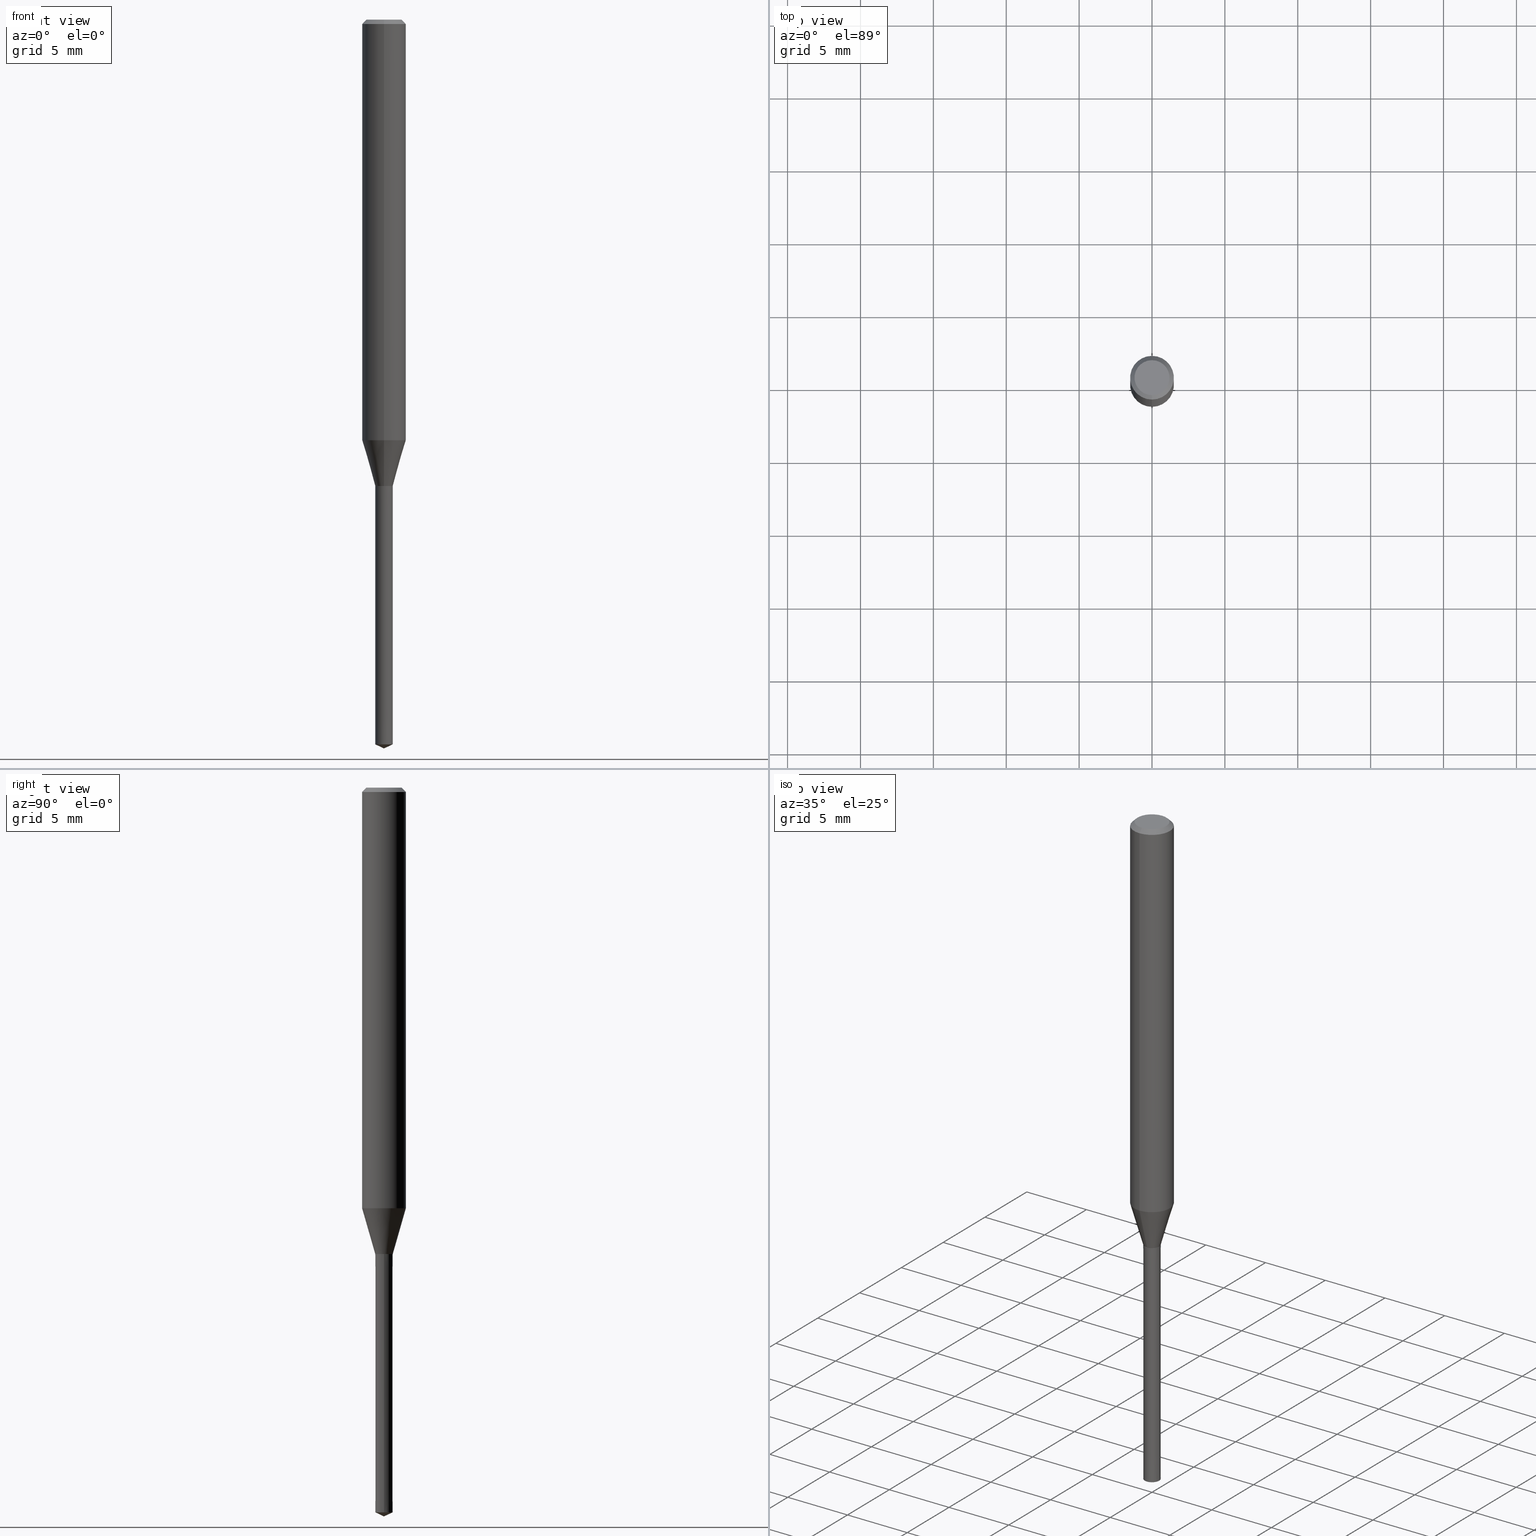
[diagram: canonical four-view strip — front | top / right | iso, engineering-drawing reading convention]
A machine part, canonical four-view strip (front | top / right | iso — engineering-drawing reading convention). The complete STEP part file that produces these views, byte-faithful:
ISO-10303-21;
HEADER;
FILE_DESCRIPTION(('no description'),'unknown implementation level');
FILE_NAME('UTDLX2120-180-Huellk.stp','  ',('CIMSOURCE GmbH'),('CADClick - KiM GmbH - www.kimweb.de'),'unknown preprocess','ACIS','unknown authorization');
FILE_SCHEMA(('automotive_design'));
ENDSEC;
DATA;
#1=MECHANICAL_DESIGN_GEOMETRIC_PRESENTATION_REPRESENTATION(' ',(#14,#15,#16,#17,#18,#19,#20,#21,#22,#23,#24,#25,#26,#27,#28,#29,#30,#31,#32,#33,#34,#35,#36,#37,#38,#39,#40,#41,#42,#43,#44,#45,#46,#47,#48,#49,#50,#51,#52,#53,#54,#55,#56,#57,#58,#59,#60,#61,#62,#63,#64,#65,#66,#67,#68,#69,#70,#71),#10);
#2=PRODUCT_DEFINITION_CONTEXT('',#72,'design');
#3=APPLICATION_PROTOCOL_DEFINITION('INTERNATIONAL STANDARD','automotive_design',1994,#72);
#4=PRODUCT_CATEGORY_RELATIONSHIP('NONE','NONE',#73,#74);
#5=SHAPE_DEFINITION_REPRESENTATION(#75,#76);
#6=PRODUCT_DEFINITION_CONTEXT('',#77,'design');
#7=APPLICATION_PROTOCOL_DEFINITION('INTERNATIONAL STANDARD','automotive_design',1994,#77);
#8=PRODUCT_CATEGORY_RELATIONSHIP('NONE','NONE',#78,#79);
#9=SHAPE_DEFINITION_REPRESENTATION(#80,#81);
#10= (GEOMETRIC_REPRESENTATION_CONTEXT(3)GLOBAL_UNCERTAINTY_ASSIGNED_CONTEXT((#84))GLOBAL_UNIT_ASSIGNED_CONTEXT((#86,#87,#88))REPRESENTATION_CONTEXT('NONE','WORKSPACE'));
#14=STYLED_ITEM('',(#90),#91);
#15=STYLED_ITEM('',(#92),#93);
#16=STYLED_ITEM('',(#94),#95);
#17=STYLED_ITEM('',(#96),#97);
#18=STYLED_ITEM('',(#98),#99);
#19=STYLED_ITEM('',(#100),#101);
#20=STYLED_ITEM('',(#102),#103);
#21=STYLED_ITEM('',(#104),#105);
#22=STYLED_ITEM('',(#106),#107);
#23=STYLED_ITEM('',(#108),#109);
#24=STYLED_ITEM('',(#110),#111);
#25=STYLED_ITEM('',(#112),#113);
#26=STYLED_ITEM('',(#114),#115);
#27=STYLED_ITEM('',(#116),#117);
#28=STYLED_ITEM('',(#118),#119);
#29=STYLED_ITEM('',(#120),#121);
#30=STYLED_ITEM('',(#122),#123);
#31=STYLED_ITEM('',(#124),#125);
#32=STYLED_ITEM('',(#126),#127);
#33=STYLED_ITEM('',(#128),#129);
#34=STYLED_ITEM('',(#130),#131);
#35=STYLED_ITEM('',(#132),#133);
#36=STYLED_ITEM('',(#134),#135);
#37=STYLED_ITEM('',(#136),#137);
#38=STYLED_ITEM('',(#138),#139);
#39=STYLED_ITEM('',(#140),#141);
#40=STYLED_ITEM('',(#142),#143);
#41=STYLED_ITEM('',(#144),#145);
#42=STYLED_ITEM('',(#146),#147);
#43=STYLED_ITEM('',(#148),#149);
#44=STYLED_ITEM('',(#150),#151);
#45=STYLED_ITEM('',(#152),#153);
#46=STYLED_ITEM('',(#154),#155);
#47=STYLED_ITEM('',(#156),#157);
#48=STYLED_ITEM('',(#158),#159);
#49=STYLED_ITEM('',(#160),#161);
#50=STYLED_ITEM('',(#162),#163);
#51=STYLED_ITEM('',(#164),#165);
#52=STYLED_ITEM('',(#166),#167);
#53=STYLED_ITEM('',(#168),#169);
#54=STYLED_ITEM('',(#170),#171);
#55=STYLED_ITEM('',(#172),#173);
#56=STYLED_ITEM('',(#174),#175);
#57=STYLED_ITEM('',(#176),#177);
#58=STYLED_ITEM('',(#178),#179);
#59=STYLED_ITEM('',(#180),#181);
#60=STYLED_ITEM('',(#182),#183);
#61=STYLED_ITEM('',(#184),#185);
#62=STYLED_ITEM('',(#186),#187);
#63=STYLED_ITEM('',(#188),#189);
#64=STYLED_ITEM('',(#190),#191);
#65=STYLED_ITEM('',(#192),#193);
#66=STYLED_ITEM('',(#194),#195);
#67=STYLED_ITEM('',(#196),#197);
#68=STYLED_ITEM('',(#198),#199);
#69=STYLED_ITEM('',(#200),#201);
#70=STYLED_ITEM('',(#202),#203);
#71=STYLED_ITEM('',(#204),#205);
#72=APPLICATION_CONTEXT(' ');
#73=PRODUCT_CATEGORY('part','NONE');
#74=PRODUCT_RELATED_PRODUCT_CATEGORY('detail',' ',(#206));
#75=PRODUCT_DEFINITION_SHAPE('NONE','NONE',#207);
#76=ADVANCED_BREP_SHAPE_REPRESENTATION('1',(#177,#208),#10);
#77=APPLICATION_CONTEXT(' ');
#78=PRODUCT_CATEGORY('part','NONE');
#79=PRODUCT_RELATED_PRODUCT_CATEGORY('detail',' ',(#209));
#80=PRODUCT_DEFINITION_SHAPE('NONE','NONE',#210);
#81=ADVANCED_BREP_SHAPE_REPRESENTATION('2',(#147,#211),#10);
#84=UNCERTAINTY_MEASURE_WITH_UNIT(LENGTH_MEASURE(1.0E-006),#86,'','');
#86= (CONVERSION_BASED_UNIT('MILLIMETRE',#214)LENGTH_UNIT()NAMED_UNIT(#217));
#87= (NAMED_UNIT(#219)PLANE_ANGLE_UNIT()SI_UNIT($,.RADIAN.));
#88= (NAMED_UNIT(#219)SOLID_ANGLE_UNIT()SI_UNIT($,.STERADIAN.));
#90=PRESENTATION_STYLE_ASSIGNMENT((#225));
#91=EDGE_CURVE('',#169,#203,#226,.T.);
#92=PRESENTATION_STYLE_ASSIGNMENT((#227));
#93=VERTEX_POINT('',#228);
#94=PRESENTATION_STYLE_ASSIGNMENT((#229));
#95=ADVANCED_FACE('',(#230),#231,.T.);
#96=PRESENTATION_STYLE_ASSIGNMENT((#232));
#97=VERTEX_POINT('',#233);
#98=PRESENTATION_STYLE_ASSIGNMENT((#234));
#99=VERTEX_POINT('',#235);
#100=PRESENTATION_STYLE_ASSIGNMENT((#236));
#101=VERTEX_POINT('',#237);
#102=PRESENTATION_STYLE_ASSIGNMENT((#238));
#103=ADVANCED_FACE('',(#239),#240,.T.);
#104=PRESENTATION_STYLE_ASSIGNMENT((#241));
#105=ADVANCED_FACE('',(#242),#243,.T.);
#106=PRESENTATION_STYLE_ASSIGNMENT((#244));
#107=EDGE_CURVE('',#135,#127,#245,.T.);
#108=PRESENTATION_STYLE_ASSIGNMENT((#246));
#109=ADVANCED_FACE('',(#247),#248,.T.);
#110=PRESENTATION_STYLE_ASSIGNMENT((#249));
#111=EDGE_CURVE('',#93,#127,#250,.T.);
#112=PRESENTATION_STYLE_ASSIGNMENT((#251));
#113=EDGE_CURVE('',#101,#201,#252,.T.);
#114=PRESENTATION_STYLE_ASSIGNMENT((#253));
#115=EDGE_CURVE('',#153,#157,#254,.T.);
#116=PRESENTATION_STYLE_ASSIGNMENT((#255));
#117=ADVANCED_FACE('',(#256),#257,.T.);
#118=PRESENTATION_STYLE_ASSIGNMENT((#258));
#119=VERTEX_POINT('',#259);
#120=PRESENTATION_STYLE_ASSIGNMENT((#260));
#121=EDGE_CURVE('',#169,#163,#261,.T.);
#122=PRESENTATION_STYLE_ASSIGNMENT((#262));
#123=EDGE_CURVE('',#201,#99,#263,.T.);
#124=PRESENTATION_STYLE_ASSIGNMENT((#264));
#125=ADVANCED_FACE('',(#265),#266,.T.);
#126=PRESENTATION_STYLE_ASSIGNMENT((#267));
#127=VERTEX_POINT('',#268);
#128=PRESENTATION_STYLE_ASSIGNMENT((#269));
#129=EDGE_CURVE('',#119,#163,#270,.T.);
#130=PRESENTATION_STYLE_ASSIGNMENT((#271));
#131=EDGE_CURVE('',#97,#153,#272,.T.);
#132=PRESENTATION_STYLE_ASSIGNMENT((#273));
#133=ADVANCED_FACE('',(#274),#275,.T.);
#134=PRESENTATION_STYLE_ASSIGNMENT((#276));
#135=VERTEX_POINT('',#277);
#136=PRESENTATION_STYLE_ASSIGNMENT((#278));
#137=VERTEX_POINT('',#279);
#138=PRESENTATION_STYLE_ASSIGNMENT((#280));
#139=EDGE_CURVE('',#119,#203,#281,.T.);
#140=PRESENTATION_STYLE_ASSIGNMENT((#282));
#141=EDGE_CURVE('',#203,#185,#283,.T.);
#142=PRESENTATION_STYLE_ASSIGNMENT((#284));
#143=EDGE_CURVE('',#99,#135,#285,.T.);
#144=PRESENTATION_STYLE_ASSIGNMENT((#286));
#145=EDGE_CURVE('',#93,#137,#287,.T.);
#146=PRESENTATION_STYLE_ASSIGNMENT((#288));
#147=MANIFOLD_SOLID_BREP('2',#289);
#148=PRESENTATION_STYLE_ASSIGNMENT((#290));
#149=ADVANCED_FACE('',(#291),#292,.T.);
#150=PRESENTATION_STYLE_ASSIGNMENT((#293));
#151=ADVANCED_FACE('',(#294),#295,.T.);
#152=PRESENTATION_STYLE_ASSIGNMENT((#296));
#153=VERTEX_POINT('',#297);
#154=PRESENTATION_STYLE_ASSIGNMENT((#298));
#155=EDGE_CURVE('',#163,#119,#299,.T.);
#156=PRESENTATION_STYLE_ASSIGNMENT((#300));
#157=VERTEX_POINT('',#301);
#158=PRESENTATION_STYLE_ASSIGNMENT((#302));
#159=ADVANCED_FACE('',(#303),#304,.T.);
#160=PRESENTATION_STYLE_ASSIGNMENT((#305));
#161=EDGE_CURVE('',#203,#169,#306,.T.);
#162=PRESENTATION_STYLE_ASSIGNMENT((#307));
#163=VERTEX_POINT('',#308);
#164=PRESENTATION_STYLE_ASSIGNMENT((#309));
#165=EDGE_CURVE('',#137,#93,#310,.T.);
#166=PRESENTATION_STYLE_ASSIGNMENT((#311));
#167=ADVANCED_FACE('',(#312),#313,.T.);
#168=PRESENTATION_STYLE_ASSIGNMENT((#314));
#169=VERTEX_POINT('',#315);
#170=PRESENTATION_STYLE_ASSIGNMENT((#316));
#171=EDGE_CURVE('',#153,#201,#317,.T.);
#172=PRESENTATION_STYLE_ASSIGNMENT((#318));
#173=EDGE_CURVE('',#101,#157,#319,.T.);
#174=PRESENTATION_STYLE_ASSIGNMENT((#320));
#175=ADVANCED_FACE('',(#321),#322,.T.);
#176=PRESENTATION_STYLE_ASSIGNMENT((#323));
#177=MANIFOLD_SOLID_BREP('1',#324);
#178=PRESENTATION_STYLE_ASSIGNMENT((#325));
#179=EDGE_CURVE('',#127,#97,#326,.T.);
#180=PRESENTATION_STYLE_ASSIGNMENT((#327));
#181=EDGE_CURVE('',#185,#169,#328,.T.);
#182=PRESENTATION_STYLE_ASSIGNMENT((#329));
#183=EDGE_CURVE('',#135,#137,#330,.T.);
#184=PRESENTATION_STYLE_ASSIGNMENT((#331));
#185=VERTEX_POINT('',#332);
#186=PRESENTATION_STYLE_ASSIGNMENT((#333));
#187=EDGE_CURVE('',#97,#99,#334,.T.);
#188=PRESENTATION_STYLE_ASSIGNMENT((#335));
#189=EDGE_CURVE('',#127,#135,#336,.T.);
#190=PRESENTATION_STYLE_ASSIGNMENT((#337));
#191=EDGE_CURVE('',#157,#101,#338,.T.);
#192=PRESENTATION_STYLE_ASSIGNMENT((#339));
#193=EDGE_CURVE('',#201,#153,#340,.T.);
#194=PRESENTATION_STYLE_ASSIGNMENT((#341));
#195=ADVANCED_FACE('',(#342),#343,.T.);
#196=PRESENTATION_STYLE_ASSIGNMENT((#344));
#197=ADVANCED_FACE('',(#345),#346,.T.);
#198=PRESENTATION_STYLE_ASSIGNMENT((#347));
#199=EDGE_CURVE('',#99,#97,#348,.T.);
#200=PRESENTATION_STYLE_ASSIGNMENT((#349));
#201=VERTEX_POINT('',#350);
#202=PRESENTATION_STYLE_ASSIGNMENT((#351));
#203=VERTEX_POINT('',#352);
#204=PRESENTATION_STYLE_ASSIGNMENT((#353));
#205=ADVANCED_FACE('',(#354),#355,.T.);
#206=PRODUCT('1','1','PART-1-DESC',(#356));
#207=PRODUCT_DEFINITION('NONE','NONE',#357,#2);
#208=AXIS2_PLACEMENT_3D('',#358,#359,#360);
#209=PRODUCT('2','2','PART-2-DESC',(#361));
#210=PRODUCT_DEFINITION('NONE','NONE',#362,#6);
#211=AXIS2_PLACEMENT_3D('',#363,#364,#365);
#214=LENGTH_MEASURE_WITH_UNIT(LENGTH_MEASURE(1.0),#366);
#217=DIMENSIONAL_EXPONENTS(1.0,0.0,0.0,0.0,0.0,0.0,0.0);
#219=DIMENSIONAL_EXPONENTS(0.0,0.0,0.0,0.0,0.0,0.0,0.0);
#225=CURVE_STYLE('',#367,POSITIVE_LENGTH_MEASURE(1.0E-006),#368);
#226=CIRCLE('',#369,0.6);
#227=POINT_STYLE(' ',#370,POSITIVE_LENGTH_MEASURE(1.0E-006),#371);
#228=CARTESIAN_POINT('',(7.35376115470337E-017,-0.6005,-32.0));
#229=SURFACE_STYLE_USAGE(.BOTH.,#372);
#230=FACE_OUTER_BOUND('',#373,.T.);
#231=CYLINDRICAL_SURFACE('',#374,1.5);
#232=POINT_STYLE(' ',#375,POSITIVE_LENGTH_MEASURE(1.0E-006),#376);
#233=CARTESIAN_POINT('',(1.83690953073357E-016,-1.5,-28.861));
#234=POINT_STYLE(' ',#377,POSITIVE_LENGTH_MEASURE(1.0E-006),#378);
#235=CARTESIAN_POINT('',(0.0,1.5,-28.861));
#236=POINT_STYLE(' ',#379,POSITIVE_LENGTH_MEASURE(1.0E-006),#380);
#237=CARTESIAN_POINT('',(0.0,1.2,0.0));
#238=SURFACE_STYLE_USAGE(.BOTH.,#381);
#239=FACE_OUTER_BOUND('',#382,.T.);
#240=CONICAL_SURFACE('',#383,0.60025,0.523598775598234);
#241=SURFACE_STYLE_USAGE(.BOTH.,#384);
#242=FACE_OUTER_BOUND('',#385,.T.);
#243=CONICAL_SURFACE('',#386,1.35,0.785398163397447);
#244=CURVE_STYLE('',#387,POSITIVE_LENGTH_MEASURE(1.0E-006),#388);
#245=CIRCLE('',#389,0.6);
#246=SURFACE_STYLE_USAGE(.BOTH.,#390);
#247=FACE_OUTER_BOUND('',#391,.T.);
#248=CONICAL_SURFACE('',#392,1.35,0.785398163397447);
#249=CURVE_STYLE('',#393,POSITIVE_LENGTH_MEASURE(1.0E-006),#394);
#250=LINE('',#395,#396);
#251=CURVE_STYLE('',#397,POSITIVE_LENGTH_MEASURE(1.0E-006),#398);
#252=LINE('',#399,#400);
#253=CURVE_STYLE('',#401,POSITIVE_LENGTH_MEASURE(1.0E-006),#402);
#254=LINE('',#403,#404);
#255=SURFACE_STYLE_USAGE(.BOTH.,#405);
#256=FACE_OUTER_BOUND('',#406,.T.);
#257=CONICAL_SURFACE('',#407,0.3,1.13446402049478);
#258=POINT_STYLE(' ',#408,POSITIVE_LENGTH_MEASURE(1.0E-006),#409);
#259=CARTESIAN_POINT('',(-0.601,0.0,-32.0));
#260=CURVE_STYLE('',#410,POSITIVE_LENGTH_MEASURE(1.0E-006),#411);
#261=LINE('',#412,#413);
#262=CURVE_STYLE('',#414,POSITIVE_LENGTH_MEASURE(1.0E-006),#415);
#263=LINE('',#416,#417);
#264=SURFACE_STYLE_USAGE(.BOTH.,#418);
#265=FACE_OUTER_BOUND('',#419,.T.);
#266=CONICAL_SURFACE('',#420,0.6005,5.64327225037074E-005);
#267=POINT_STYLE(' ',#421,POSITIVE_LENGTH_MEASURE(1.0E-006),#422);
#268=CARTESIAN_POINT('',(7.34763812293426E-017,-0.6,-31.9991339745962));
#269=CURVE_STYLE('',#423,POSITIVE_LENGTH_MEASURE(1.0E-006),#424);
#270=CIRCLE('',#425,0.601);
#271=CURVE_STYLE('',#426,POSITIVE_LENGTH_MEASURE(1.0E-006),#427);
#272=LINE('',#428,#429);
#273=SURFACE_STYLE_USAGE(.BOTH.,#430);
#274=FACE_OUTER_BOUND('',#431,.T.);
#275=CONICAL_SURFACE('',#432,0.60025,0.523598775598234);
#276=POINT_STYLE(' ',#433,POSITIVE_LENGTH_MEASURE(1.0E-006),#434);
#277=CARTESIAN_POINT('',(0.0,0.6,-31.9991339745962));
#278=POINT_STYLE(' ',#435,POSITIVE_LENGTH_MEASURE(1.0E-006),#436);
#279=CARTESIAN_POINT('',(0.0,0.6005,-32.0));
#280=CURVE_STYLE('',#437,POSITIVE_LENGTH_MEASURE(1.0E-006),#438);
#281=LINE('',#439,#440);
#282=CURVE_STYLE('',#441,POSITIVE_LENGTH_MEASURE(1.0E-006),#442);
#283=LINE('',#443,#444);
#284=CURVE_STYLE('',#445,POSITIVE_LENGTH_MEASURE(1.0E-006),#446);
#285=LINE('',#447,#448);
#286=CURVE_STYLE('',#449,POSITIVE_LENGTH_MEASURE(1.0E-006),#450);
#287=CIRCLE('',#451,0.6005);
#288=SURFACE_STYLE_USAGE(.BOTH.,#452);
#289=CLOSED_SHELL('',(#117,#159,#197,#125,#167));
#290=SURFACE_STYLE_USAGE(.BOTH.,#453);
#291=FACE_OUTER_BOUND('',#454,.T.);
#292=CYLINDRICAL_SURFACE('',#455,1.5);
#293=SURFACE_STYLE_USAGE(.BOTH.,#456);
#294=FACE_OUTER_BOUND('',#457,.T.);
#295=PLANE('',#458);
#296=POINT_STYLE(' ',#459,POSITIVE_LENGTH_MEASURE(1.0E-006),#460);
#297=CARTESIAN_POINT('',(1.83690953073357E-016,-1.5,-0.300000000000001));
#298=CURVE_STYLE('',#461,POSITIVE_LENGTH_MEASURE(1.0E-006),#462);
#299=CIRCLE('',#463,0.601);
#300=POINT_STYLE(' ',#464,POSITIVE_LENGTH_MEASURE(1.0E-006),#465);
#301=CARTESIAN_POINT('',(1.46952762458685E-016,-1.2,0.0));
#302=SURFACE_STYLE_USAGE(.BOTH.,#466);
#303=FACE_OUTER_BOUND('',#467,.T.);
#304=CONICAL_SURFACE('',#468,0.6005,5.64327225037074E-005);
#305=CURVE_STYLE('',#469,POSITIVE_LENGTH_MEASURE(1.0E-006),#470);
#306=CIRCLE('',#471,0.6);
#307=POINT_STYLE(' ',#472,POSITIVE_LENGTH_MEASURE(1.0E-006),#473);
#308=CARTESIAN_POINT('',(0.601,7.35988418647249E-017,-32.0));
#309=CURVE_STYLE('',#474,POSITIVE_LENGTH_MEASURE(1.0E-006),#475);
#310=CIRCLE('',#476,0.6005);
#311=SURFACE_STYLE_USAGE(.BOTH.,#477);
#312=FACE_OUTER_BOUND('',#478,.T.);
#313=CONICAL_SURFACE('',#479,0.3,1.13446402049478);
#314=POINT_STYLE(' ',#480,POSITIVE_LENGTH_MEASURE(1.0E-006),#481);
#315=CARTESIAN_POINT('',(0.6,7.34763812293427E-017,-49.72021541));
#316=CURVE_STYLE('',#482,POSITIVE_LENGTH_MEASURE(1.0E-006),#483);
#317=CIRCLE('',#484,1.5);
#318=CURVE_STYLE('',#485,POSITIVE_LENGTH_MEASURE(1.0E-006),#486);
#319=CIRCLE('',#487,1.2);
#320=SURFACE_STYLE_USAGE(.BOTH.,#488);
#321=FACE_OUTER_BOUND('',#489,.T.);
#322=CONICAL_SURFACE('',#490,1.05,0.279298190793163);
#323=SURFACE_STYLE_USAGE(.BOTH.,#491);
#324=CLOSED_SHELL('',(#133,#175,#95,#105,#151,#109,#149,#195,#103,#205));
#325=CURVE_STYLE('',#492,POSITIVE_LENGTH_MEASURE(1.0E-006),#493);
#326=LINE('',#494,#495);
#327=CURVE_STYLE('',#496,POSITIVE_LENGTH_MEASURE(1.0E-006),#497);
#328=LINE('',#498,#499);
#329=CURVE_STYLE('',#500,POSITIVE_LENGTH_MEASURE(1.0E-006),#501);
#330=LINE('',#502,#503);
#331=POINT_STYLE(' ',#504,POSITIVE_LENGTH_MEASURE(1.0E-006),#505);
#332=CARTESIAN_POINT('',(0.0,0.0,-50.0));
#333=CURVE_STYLE('',#506,POSITIVE_LENGTH_MEASURE(1.0E-006),#507);
#334=CIRCLE('',#508,1.5);
#335=CURVE_STYLE('',#509,POSITIVE_LENGTH_MEASURE(1.0E-006),#510);
#336=CIRCLE('',#511,0.6);
#337=CURVE_STYLE('',#512,POSITIVE_LENGTH_MEASURE(1.0E-006),#513);
#338=CIRCLE('',#514,1.2);
#339=CURVE_STYLE('',#515,POSITIVE_LENGTH_MEASURE(1.0E-006),#516);
#340=CIRCLE('',#517,1.5);
#341=SURFACE_STYLE_USAGE(.BOTH.,#518);
#342=FACE_OUTER_BOUND('',#519,.T.);
#343=CONICAL_SURFACE('',#520,1.05,0.279298190793163);
#344=SURFACE_STYLE_USAGE(.BOTH.,#521);
#345=FACE_OUTER_BOUND('',#522,.T.);
#346=PLANE('',#523);
#347=CURVE_STYLE('',#524,POSITIVE_LENGTH_MEASURE(1.0E-006),#525);
#348=CIRCLE('',#526,1.5);
#349=POINT_STYLE(' ',#527,POSITIVE_LENGTH_MEASURE(1.0E-006),#528);
#350=CARTESIAN_POINT('',(0.0,1.5,-0.300000000000001));
#351=POINT_STYLE(' ',#529,POSITIVE_LENGTH_MEASURE(1.0E-006),#530);
#352=CARTESIAN_POINT('',(-0.6,0.0,-49.72021541));
#353=SURFACE_STYLE_USAGE(.BOTH.,#531);
#354=FACE_OUTER_BOUND('',#532,.T.);
#355=PLANE('',#533);
#356=PRODUCT_CONTEXT('',#72,'mechanical');
#357=PRODUCT_DEFINITION_FORMATION_WITH_SPECIFIED_SOURCE(' ','NONE',#206,.NOT_KNOWN.);
#358=CARTESIAN_POINT('',(0.0,0.0,0.0));
#359=DIRECTION('',(0.0,0.0,1.0));
#360=DIRECTION('',(1.0,0.0,0.0));
#361=PRODUCT_CONTEXT('',#77,'mechanical');
#362=PRODUCT_DEFINITION_FORMATION_WITH_SPECIFIED_SOURCE(' ','NONE',#209,.NOT_KNOWN.);
#363=CARTESIAN_POINT('',(0.0,0.0,0.0));
#364=DIRECTION('',(0.0,0.0,1.0));
#365=DIRECTION('',(1.0,0.0,0.0));
#366= (NAMED_UNIT(#217)LENGTH_UNIT()SI_UNIT(.MILLI.,.METRE.));
#367=DRAUGHTING_PRE_DEFINED_CURVE_FONT('continuous');
#368=COLOUR_RGB('',0.800000011920929,0.800000011920929,0.800000011920929);
#369=AXIS2_PLACEMENT_3D('',#535,#536,#537);
#370=PRE_DEFINED_MARKER('');
#371=COLOUR_RGB('',0.498039215803146,0.498039215803146,0.498039215803146);
#372=SURFACE_SIDE_STYLE('',(#538));
#373=EDGE_LOOP('',(#539,#540,#541,#542));
#374=AXIS2_PLACEMENT_3D('',#543,#544,#545);
#375=PRE_DEFINED_MARKER('');
#376=COLOUR_RGB('',0.498039215803146,0.498039215803146,0.498039215803146);
#377=PRE_DEFINED_MARKER('');
#378=COLOUR_RGB('',0.498039215803146,0.498039215803146,0.498039215803146);
#379=PRE_DEFINED_MARKER('');
#380=COLOUR_RGB('',0.498039215803146,0.498039215803146,0.498039215803146);
#381=SURFACE_SIDE_STYLE('',(#546));
#382=EDGE_LOOP('',(#547,#548,#549,#550));
#383=AXIS2_PLACEMENT_3D('',#551,#552,#553);
#384=SURFACE_SIDE_STYLE('',(#554));
#385=EDGE_LOOP('',(#555,#556,#557,#558));
#386=AXIS2_PLACEMENT_3D('',#559,#560,#561);
#387=DRAUGHTING_PRE_DEFINED_CURVE_FONT('continuous');
#388=COLOUR_RGB('',0.498039215803146,0.498039215803146,0.498039215803146);
#389=AXIS2_PLACEMENT_3D('',#562,#563,#564);
#390=SURFACE_SIDE_STYLE('',(#565));
#391=EDGE_LOOP('',(#566,#567,#568,#569));
#392=AXIS2_PLACEMENT_3D('',#570,#571,#572);
#393=DRAUGHTING_PRE_DEFINED_CURVE_FONT('continuous');
#394=COLOUR_RGB('',0.498039215803146,0.498039215803146,0.498039215803146);
#395=CARTESIAN_POINT('',(7.35069963881882E-017,-0.60025,-31.9995669872981));
#396=VECTOR('',#573,1.0);
#397=DRAUGHTING_PRE_DEFINED_CURVE_FONT('continuous');
#398=COLOUR_RGB('',0.498039215803146,0.498039215803146,0.498039215803146);
#399=CARTESIAN_POINT('',(-1.65321857766021E-016,1.35,-0.149999999999999));
#400=VECTOR('',#574,1.0);
#401=DRAUGHTING_PRE_DEFINED_CURVE_FONT('continuous');
#402=COLOUR_RGB('',0.498039215803146,0.498039215803146,0.498039215803146);
#403=CARTESIAN_POINT('',(1.65321857766021E-016,-1.35,-0.149999999999999));
#404=VECTOR('',#575,1.0);
#405=SURFACE_SIDE_STYLE('',(#576));
#406=EDGE_LOOP('',(#577,#578,#579));
#407=AXIS2_PLACEMENT_3D('',#580,#581,#582);
#408=PRE_DEFINED_MARKER('');
#409=COLOUR_RGB('',0.800000011920929,0.800000011920929,0.800000011920929);
#410=DRAUGHTING_PRE_DEFINED_CURVE_FONT('continuous');
#411=COLOUR_RGB('',0.800000011920929,0.800000011920929,0.800000011920929);
#412=CARTESIAN_POINT('',(0.6005,7.35376115470338E-017,-40.860107705));
#413=VECTOR('',#583,1.0);
#414=DRAUGHTING_PRE_DEFINED_CURVE_FONT('continuous');
#415=COLOUR_RGB('',0.498039215803146,0.498039215803146,0.498039215803146);
#416=CARTESIAN_POINT('',(-1.83690953073357E-016,1.5,-14.5805));
#417=VECTOR('',#584,1.0);
#418=SURFACE_SIDE_STYLE('',(#585));
#419=EDGE_LOOP('',(#586,#587,#588,#589));
#420=AXIS2_PLACEMENT_3D('',#590,#591,#592);
#421=PRE_DEFINED_MARKER('');
#422=COLOUR_RGB('',0.498039215803146,0.498039215803146,0.498039215803146);
#423=DRAUGHTING_PRE_DEFINED_CURVE_FONT('continuous');
#424=COLOUR_RGB('',0.800000011920929,0.800000011920929,0.800000011920929);
#425=AXIS2_PLACEMENT_3D('',#593,#594,#595);
#426=DRAUGHTING_PRE_DEFINED_CURVE_FONT('continuous');
#427=COLOUR_RGB('',0.498039215803146,0.498039215803146,0.498039215803146);
#428=CARTESIAN_POINT('',(1.83690953073357E-016,-1.5,-14.5805));
#429=VECTOR('',#596,1.0);
#430=SURFACE_SIDE_STYLE('',(#597));
#431=EDGE_LOOP('',(#598,#599,#600,#601));
#432=AXIS2_PLACEMENT_3D('',#602,#603,#604);
#433=PRE_DEFINED_MARKER('');
#434=COLOUR_RGB('',0.498039215803146,0.498039215803146,0.498039215803146);
#435=PRE_DEFINED_MARKER('');
#436=COLOUR_RGB('',0.498039215803146,0.498039215803146,0.498039215803146);
#437=DRAUGHTING_PRE_DEFINED_CURVE_FONT('continuous');
#438=COLOUR_RGB('',0.800000011920929,0.800000011920929,0.800000011920929);
#439=CARTESIAN_POINT('',(-0.6005,-7.35376115470338E-017,-40.860107705));
#440=VECTOR('',#605,1.0);
#441=DRAUGHTING_PRE_DEFINED_CURVE_FONT('continuous');
#442=COLOUR_RGB('',0.800000011920929,0.800000011920929,0.800000011920929);
#443=CARTESIAN_POINT('',(-0.3,-3.67381906146713E-017,-49.860107705));
#444=VECTOR('',#606,1.0);
#445=DRAUGHTING_PRE_DEFINED_CURVE_FONT('continuous');
#446=COLOUR_RGB('',0.498039215803146,0.498039215803146,0.498039215803146);
#447=CARTESIAN_POINT('',(-1.2858366715135E-016,1.05,-30.4300669872981));
#448=VECTOR('',#607,1.0);
#449=DRAUGHTING_PRE_DEFINED_CURVE_FONT('continuous');
#450=COLOUR_RGB('',0.498039215803146,0.498039215803146,0.498039215803146);
#451=AXIS2_PLACEMENT_3D('',#608,#609,#610);
#452=SURFACE_SIDE_STYLE('',(#611));
#453=SURFACE_SIDE_STYLE('',(#612));
#454=EDGE_LOOP('',(#613,#614,#615,#616));
#455=AXIS2_PLACEMENT_3D('',#617,#618,#619);
#456=SURFACE_SIDE_STYLE('',(#620));
#457=EDGE_LOOP('',(#621,#622));
#458=AXIS2_PLACEMENT_3D('',#623,#624,#625);
#459=PRE_DEFINED_MARKER('');
#460=COLOUR_RGB('',0.498039215803146,0.498039215803146,0.498039215803146);
#461=DRAUGHTING_PRE_DEFINED_CURVE_FONT('continuous');
#462=COLOUR_RGB('',0.800000011920929,0.800000011920929,0.800000011920929);
#463=AXIS2_PLACEMENT_3D('',#626,#627,#628);
#464=PRE_DEFINED_MARKER('');
#465=COLOUR_RGB('',0.498039215803146,0.498039215803146,0.498039215803146);
#466=SURFACE_SIDE_STYLE('',(#629));
#467=EDGE_LOOP('',(#630,#631,#632,#633));
#468=AXIS2_PLACEMENT_3D('',#634,#635,#636);
#469=DRAUGHTING_PRE_DEFINED_CURVE_FONT('continuous');
#470=COLOUR_RGB('',0.800000011920929,0.800000011920929,0.800000011920929);
#471=AXIS2_PLACEMENT_3D('',#637,#638,#639);
#472=PRE_DEFINED_MARKER('');
#473=COLOUR_RGB('',0.800000011920929,0.800000011920929,0.800000011920929);
#474=DRAUGHTING_PRE_DEFINED_CURVE_FONT('continuous');
#475=COLOUR_RGB('',0.498039215803146,0.498039215803146,0.498039215803146);
#476=AXIS2_PLACEMENT_3D('',#640,#641,#642);
#477=SURFACE_SIDE_STYLE('',(#643));
#478=EDGE_LOOP('',(#644,#645,#646));
#479=AXIS2_PLACEMENT_3D('',#647,#648,#649);
#480=PRE_DEFINED_MARKER('');
#481=COLOUR_RGB('',0.800000011920929,0.800000011920929,0.800000011920929);
#482=DRAUGHTING_PRE_DEFINED_CURVE_FONT('continuous');
#483=COLOUR_RGB('',0.498039215803146,0.498039215803146,0.498039215803146);
#484=AXIS2_PLACEMENT_3D('',#650,#651,#652);
#485=DRAUGHTING_PRE_DEFINED_CURVE_FONT('continuous');
#486=COLOUR_RGB('',0.498039215803146,0.498039215803146,0.498039215803146);
#487=AXIS2_PLACEMENT_3D('',#653,#654,#655);
#488=SURFACE_SIDE_STYLE('',(#656));
#489=EDGE_LOOP('',(#657,#658,#659,#660));
#490=AXIS2_PLACEMENT_3D('',#661,#662,#663);
#491=SURFACE_SIDE_STYLE('',(#664));
#492=DRAUGHTING_PRE_DEFINED_CURVE_FONT('continuous');
#493=COLOUR_RGB('',0.498039215803146,0.498039215803146,0.498039215803146);
#494=CARTESIAN_POINT('',(1.2858366715135E-016,-1.05,-30.4300669872981));
#495=VECTOR('',#665,1.0);
#496=DRAUGHTING_PRE_DEFINED_CURVE_FONT('continuous');
#497=COLOUR_RGB('',0.800000011920929,0.800000011920929,0.800000011920929);
#498=CARTESIAN_POINT('',(0.3,3.67381906146713E-017,-49.860107705));
#499=VECTOR('',#666,1.0);
#500=DRAUGHTING_PRE_DEFINED_CURVE_FONT('continuous');
#501=COLOUR_RGB('',0.498039215803146,0.498039215803146,0.498039215803146);
#502=CARTESIAN_POINT('',(-7.35069963881882E-017,0.60025,-31.9995669872981));
#503=VECTOR('',#667,1.0);
#504=PRE_DEFINED_MARKER('');
#505=COLOUR_RGB('',0.800000011920929,0.800000011920929,0.800000011920929);
#506=DRAUGHTING_PRE_DEFINED_CURVE_FONT('continuous');
#507=COLOUR_RGB('',0.498039215803146,0.498039215803146,0.498039215803146);
#508=AXIS2_PLACEMENT_3D('',#668,#669,#670);
#509=DRAUGHTING_PRE_DEFINED_CURVE_FONT('continuous');
#510=COLOUR_RGB('',0.498039215803146,0.498039215803146,0.498039215803146);
#511=AXIS2_PLACEMENT_3D('',#671,#672,#673);
#512=DRAUGHTING_PRE_DEFINED_CURVE_FONT('continuous');
#513=COLOUR_RGB('',0.498039215803146,0.498039215803146,0.498039215803146);
#514=AXIS2_PLACEMENT_3D('',#674,#675,#676);
#515=DRAUGHTING_PRE_DEFINED_CURVE_FONT('continuous');
#516=COLOUR_RGB('',0.498039215803146,0.498039215803146,0.498039215803146);
#517=AXIS2_PLACEMENT_3D('',#677,#678,#679);
#518=SURFACE_SIDE_STYLE('',(#680));
#519=EDGE_LOOP('',(#681,#682,#683,#684));
#520=AXIS2_PLACEMENT_3D('',#685,#686,#687);
#521=SURFACE_SIDE_STYLE('',(#688));
#522=EDGE_LOOP('',(#689,#690));
#523=AXIS2_PLACEMENT_3D('',#691,#692,#693);
#524=DRAUGHTING_PRE_DEFINED_CURVE_FONT('continuous');
#525=COLOUR_RGB('',0.498039215803146,0.498039215803146,0.498039215803146);
#526=AXIS2_PLACEMENT_3D('',#694,#695,#696);
#527=PRE_DEFINED_MARKER('');
#528=COLOUR_RGB('',0.498039215803146,0.498039215803146,0.498039215803146);
#529=PRE_DEFINED_MARKER('');
#530=COLOUR_RGB('',0.800000011920929,0.800000011920929,0.800000011920929);
#531=SURFACE_SIDE_STYLE('',(#697));
#532=EDGE_LOOP('',(#698,#699));
#533=AXIS2_PLACEMENT_3D('',#700,#701,#702);
#535=CARTESIAN_POINT('',(0.0,0.0,-49.72021541));
#536=DIRECTION('',(0.0,0.0,-1.0));
#537=DIRECTION('',(-1.0,0.0,0.0));
#538=SURFACE_STYLE_FILL_AREA(#703);
#539=ORIENTED_EDGE('',*,*,#123,.F.);
#540=ORIENTED_EDGE('',*,*,#193,.T.);
#541=ORIENTED_EDGE('',*,*,#131,.F.);
#542=ORIENTED_EDGE('',*,*,#199,.F.);
#543=CARTESIAN_POINT('',(0.0,0.0,-14.5805));
#544=DIRECTION('',(-0.0,-0.0,1.0));
#545=DIRECTION('',(0.0,1.0,0.0));
#546=SURFACE_STYLE_FILL_AREA(#704);
#547=ORIENTED_EDGE('',*,*,#183,.T.);
#548=ORIENTED_EDGE('',*,*,#145,.F.);
#549=ORIENTED_EDGE('',*,*,#111,.T.);
#550=ORIENTED_EDGE('',*,*,#189,.T.);
#551=CARTESIAN_POINT('',(0.0,0.0,-31.9995669872981));
#552=DIRECTION('',(0.0,-0.0,-1.0));
#553=DIRECTION('',(0.0,1.0,0.0));
#554=SURFACE_STYLE_FILL_AREA(#705);
#555=ORIENTED_EDGE('',*,*,#113,.F.);
#556=ORIENTED_EDGE('',*,*,#173,.T.);
#557=ORIENTED_EDGE('',*,*,#115,.F.);
#558=ORIENTED_EDGE('',*,*,#193,.F.);
#559=CARTESIAN_POINT('',(0.0,0.0,-0.149999999999999));
#560=DIRECTION('',(0.0,-0.0,-1.0));
#561=DIRECTION('',(0.0,1.0,0.0));
#562=CARTESIAN_POINT('',(0.0,0.0,-31.9991339745962));
#563=DIRECTION('',(0.0,0.0,-1.0));
#564=DIRECTION('',(0.0,1.0,0.0));
#565=SURFACE_STYLE_FILL_AREA(#706);
#566=ORIENTED_EDGE('',*,*,#113,.T.);
#567=ORIENTED_EDGE('',*,*,#171,.F.);
#568=ORIENTED_EDGE('',*,*,#115,.T.);
#569=ORIENTED_EDGE('',*,*,#191,.T.);
#570=CARTESIAN_POINT('',(0.0,0.0,-0.149999999999999));
#571=DIRECTION('',(0.0,-0.0,-1.0));
#572=DIRECTION('',(0.0,1.0,0.0));
#573=DIRECTION('',(-6.1230317691112E-017,0.499999999999944,0.866025403784471));
#574=DIRECTION('',(-8.65927457071934E-017,0.707106781186546,-0.707106781186549));
#575=DIRECTION('',(-8.65927457071934E-017,0.707106781186546,0.707106781186549));
#576=SURFACE_STYLE_FILL_AREA(#707);
#577=ORIENTED_EDGE('',*,*,#181,.F.);
#578=ORIENTED_EDGE('',*,*,#141,.F.);
#579=ORIENTED_EDGE('',*,*,#161,.T.);
#580=CARTESIAN_POINT('',(0.0,0.0,-49.860107705));
#581=DIRECTION('',(-0.0,-0.0,1.0));
#582=DIRECTION('',(-1.0,0.0,0.0));
#583=DIRECTION('',(5.64327224737543E-005,6.91078705048544E-021,0.999999998407674));
#584=DIRECTION('',(0.0,0.0,-1.0));
#585=SURFACE_STYLE_FILL_AREA(#708);
#586=ORIENTED_EDGE('',*,*,#139,.T.);
#587=ORIENTED_EDGE('',*,*,#91,.F.);
#588=ORIENTED_EDGE('',*,*,#121,.T.);
#589=ORIENTED_EDGE('',*,*,#155,.T.);
#590=CARTESIAN_POINT('',(0.0,0.0,-40.860107705));
#591=DIRECTION('',(-0.0,-0.0,1.0));
#592=DIRECTION('',(-1.0,0.0,0.0));
#593=CARTESIAN_POINT('',(0.0,0.0,-32.0));
#594=DIRECTION('',(0.0,0.0,-1.0));
#595=DIRECTION('',(-1.0,0.0,0.0));
#596=DIRECTION('',(-0.0,-0.0,1.0));
#597=SURFACE_STYLE_FILL_AREA(#709);
#598=ORIENTED_EDGE('',*,*,#183,.F.);
#599=ORIENTED_EDGE('',*,*,#107,.T.);
#600=ORIENTED_EDGE('',*,*,#111,.F.);
#601=ORIENTED_EDGE('',*,*,#165,.F.);
#602=CARTESIAN_POINT('',(0.0,0.0,-31.9995669872981));
#603=DIRECTION('',(0.0,-0.0,-1.0));
#604=DIRECTION('',(0.0,1.0,0.0));
#605=DIRECTION('',(5.64327224737543E-005,6.91078705048544E-021,-0.999999998407674));
#606=DIRECTION('',(0.906307789867545,1.10987027799051E-016,-0.422618255669826));
#607=DIRECTION('',(3.3760083037116E-017,-0.275681103007022,-0.961249150556104));
#608=CARTESIAN_POINT('',(0.0,0.0,-32.0));
#609=DIRECTION('',(0.0,0.0,-1.0));
#610=DIRECTION('',(0.0,1.0,0.0));
#611=SURFACE_STYLE_FILL_AREA(#710);
#612=SURFACE_STYLE_FILL_AREA(#711);
#613=ORIENTED_EDGE('',*,*,#123,.T.);
#614=ORIENTED_EDGE('',*,*,#187,.F.);
#615=ORIENTED_EDGE('',*,*,#131,.T.);
#616=ORIENTED_EDGE('',*,*,#171,.T.);
#617=CARTESIAN_POINT('',(0.0,0.0,-14.5805));
#618=DIRECTION('',(-0.0,-0.0,1.0));
#619=DIRECTION('',(0.0,1.0,0.0));
#620=SURFACE_STYLE_FILL_AREA(#712);
#621=ORIENTED_EDGE('',*,*,#173,.F.);
#622=ORIENTED_EDGE('',*,*,#191,.F.);
#623=CARTESIAN_POINT('',(0.0,0.6,0.0));
#624=DIRECTION('',(-0.0,0.0,1.0));
#625=DIRECTION('',(0.0,-1.0,0.0));
#626=CARTESIAN_POINT('',(0.0,0.0,-32.0));
#627=DIRECTION('',(0.0,0.0,-1.0));
#628=DIRECTION('',(-1.0,0.0,0.0));
#629=SURFACE_STYLE_FILL_AREA(#713);
#630=ORIENTED_EDGE('',*,*,#139,.F.);
#631=ORIENTED_EDGE('',*,*,#129,.T.);
#632=ORIENTED_EDGE('',*,*,#121,.F.);
#633=ORIENTED_EDGE('',*,*,#161,.F.);
#634=CARTESIAN_POINT('',(0.0,0.0,-40.860107705));
#635=DIRECTION('',(-0.0,-0.0,1.0));
#636=DIRECTION('',(-1.0,0.0,0.0));
#637=CARTESIAN_POINT('',(0.0,0.0,-49.72021541));
#638=DIRECTION('',(0.0,0.0,-1.0));
#639=DIRECTION('',(-1.0,0.0,0.0));
#640=CARTESIAN_POINT('',(0.0,0.0,-32.0));
#641=DIRECTION('',(0.0,0.0,-1.0));
#642=DIRECTION('',(0.0,1.0,0.0));
#643=SURFACE_STYLE_FILL_AREA(#714);
#644=ORIENTED_EDGE('',*,*,#181,.T.);
#645=ORIENTED_EDGE('',*,*,#91,.T.);
#646=ORIENTED_EDGE('',*,*,#141,.T.);
#647=CARTESIAN_POINT('',(0.0,0.0,-49.860107705));
#648=DIRECTION('',(-0.0,-0.0,1.0));
#649=DIRECTION('',(-1.0,0.0,0.0));
#650=CARTESIAN_POINT('',(0.0,0.0,-0.300000000000001));
#651=DIRECTION('',(0.0,0.0,-1.0));
#652=DIRECTION('',(0.0,1.0,0.0));
#653=CARTESIAN_POINT('',(0.0,0.0,0.0));
#654=DIRECTION('',(0.0,0.0,-1.0));
#655=DIRECTION('',(0.0,1.0,0.0));
#656=SURFACE_STYLE_FILL_AREA(#715);
#657=ORIENTED_EDGE('',*,*,#143,.F.);
#658=ORIENTED_EDGE('',*,*,#199,.T.);
#659=ORIENTED_EDGE('',*,*,#179,.F.);
#660=ORIENTED_EDGE('',*,*,#107,.F.);
#661=CARTESIAN_POINT('',(0.0,0.0,-30.4300669872981));
#662=DIRECTION('',(-0.0,-0.0,1.0));
#663=DIRECTION('',(0.0,1.0,0.0));
#664=SURFACE_STYLE_FILL_AREA(#716);
#665=DIRECTION('',(3.3760083037116E-017,-0.275681103007022,0.961249150556104));
#666=DIRECTION('',(0.906307789867545,1.10987027799051E-016,0.422618255669826));
#667=DIRECTION('',(-6.1230317691112E-017,0.499999999999944,-0.866025403784471));
#668=CARTESIAN_POINT('',(0.0,0.0,-28.861));
#669=DIRECTION('',(0.0,0.0,-1.0));
#670=DIRECTION('',(0.0,1.0,0.0));
#671=CARTESIAN_POINT('',(0.0,0.0,-31.9991339745962));
#672=DIRECTION('',(0.0,0.0,-1.0));
#673=DIRECTION('',(0.0,1.0,0.0));
#674=CARTESIAN_POINT('',(0.0,0.0,0.0));
#675=DIRECTION('',(0.0,0.0,-1.0));
#676=DIRECTION('',(0.0,1.0,0.0));
#677=CARTESIAN_POINT('',(0.0,0.0,-0.300000000000001));
#678=DIRECTION('',(0.0,0.0,-1.0));
#679=DIRECTION('',(0.0,1.0,0.0));
#680=SURFACE_STYLE_FILL_AREA(#717);
#681=ORIENTED_EDGE('',*,*,#143,.T.);
#682=ORIENTED_EDGE('',*,*,#189,.F.);
#683=ORIENTED_EDGE('',*,*,#179,.T.);
#684=ORIENTED_EDGE('',*,*,#187,.T.);
#685=CARTESIAN_POINT('',(0.0,0.0,-30.4300669872981));
#686=DIRECTION('',(-0.0,-0.0,1.0));
#687=DIRECTION('',(0.0,1.0,0.0));
#688=SURFACE_STYLE_FILL_AREA(#718);
#689=ORIENTED_EDGE('',*,*,#129,.F.);
#690=ORIENTED_EDGE('',*,*,#155,.F.);
#691=CARTESIAN_POINT('',(-0.3005,0.0,-32.0));
#692=DIRECTION('',(0.0,0.0,1.0));
#693=DIRECTION('',(1.0,0.0,0.0));
#694=CARTESIAN_POINT('',(0.0,0.0,-28.861));
#695=DIRECTION('',(0.0,0.0,-1.0));
#696=DIRECTION('',(0.0,1.0,0.0));
#697=SURFACE_STYLE_FILL_AREA(#719);
#698=ORIENTED_EDGE('',*,*,#165,.T.);
#699=ORIENTED_EDGE('',*,*,#145,.T.);
#700=CARTESIAN_POINT('',(0.0,0.30025,-32.0));
#701=DIRECTION('',(0.0,0.0,-1.0));
#702=DIRECTION('',(0.0,1.0,0.0));
#703=FILL_AREA_STYLE('',(#720));
#704=FILL_AREA_STYLE('',(#721));
#705=FILL_AREA_STYLE('',(#722));
#706=FILL_AREA_STYLE('',(#723));
#707=FILL_AREA_STYLE('',(#724));
#708=FILL_AREA_STYLE('',(#725));
#709=FILL_AREA_STYLE('',(#726));
#710=FILL_AREA_STYLE('',(#727));
#711=FILL_AREA_STYLE('',(#728));
#712=FILL_AREA_STYLE('',(#729));
#713=FILL_AREA_STYLE('',(#730));
#714=FILL_AREA_STYLE('',(#731));
#715=FILL_AREA_STYLE('',(#732));
#716=FILL_AREA_STYLE('',(#733));
#717=FILL_AREA_STYLE('',(#734));
#718=FILL_AREA_STYLE('',(#735));
#719=FILL_AREA_STYLE('',(#736));
#720=FILL_AREA_STYLE_COLOUR('',#737);
#721=FILL_AREA_STYLE_COLOUR('',#738);
#722=FILL_AREA_STYLE_COLOUR('',#739);
#723=FILL_AREA_STYLE_COLOUR('',#740);
#724=FILL_AREA_STYLE_COLOUR('',#741);
#725=FILL_AREA_STYLE_COLOUR('',#742);
#726=FILL_AREA_STYLE_COLOUR('',#743);
#727=FILL_AREA_STYLE_COLOUR('',#744);
#728=FILL_AREA_STYLE_COLOUR('',#745);
#729=FILL_AREA_STYLE_COLOUR('',#746);
#730=FILL_AREA_STYLE_COLOUR('',#747);
#731=FILL_AREA_STYLE_COLOUR('',#748);
#732=FILL_AREA_STYLE_COLOUR('',#749);
#733=FILL_AREA_STYLE_COLOUR('',#750);
#734=FILL_AREA_STYLE_COLOUR('',#751);
#735=FILL_AREA_STYLE_COLOUR('',#752);
#736=FILL_AREA_STYLE_COLOUR('',#753);
#737=COLOUR_RGB('',0.498039215803146,0.498039215803146,0.498039215803146);
#738=COLOUR_RGB('',0.498039215803146,0.498039215803146,0.498039215803146);
#739=COLOUR_RGB('',0.498039215803146,0.498039215803146,0.498039215803146);
#740=COLOUR_RGB('',0.498039215803146,0.498039215803146,0.498039215803146);
#741=COLOUR_RGB('',0.800000011920929,0.800000011920929,0.800000011920929);
#742=COLOUR_RGB('',0.800000011920929,0.800000011920929,0.800000011920929);
#743=COLOUR_RGB('',0.498039215803146,0.498039215803146,0.498039215803146);
#744=COLOUR_RGB('',0.800000011920929,0.800000011920929,0.800000011920929);
#745=COLOUR_RGB('',0.498039215803146,0.498039215803146,0.498039215803146);
#746=COLOUR_RGB('',0.498039215803146,0.498039215803146,0.498039215803146);
#747=COLOUR_RGB('',0.800000011920929,0.800000011920929,0.800000011920929);
#748=COLOUR_RGB('',0.800000011920929,0.800000011920929,0.800000011920929);
#749=COLOUR_RGB('',0.498039215803146,0.498039215803146,0.498039215803146);
#750=COLOUR_RGB('',0.498039215803146,0.498039215803146,0.498039215803146);
#751=COLOUR_RGB('',0.498039215803146,0.498039215803146,0.498039215803146);
#752=COLOUR_RGB('',0.800000011920929,0.800000011920929,0.800000011920929);
#753=COLOUR_RGB('',0.498039215803146,0.498039215803146,0.498039215803146);
#754=AXIS2_PLACEMENT_3D('PCS',#755,#756,#757);
#755=CARTESIAN_POINT('',(0.0,0.0,0.0));
#756=DIRECTION('',(0.0,0.0,1.0));
#757=DIRECTION('',(1.0,0.0,0.0));
#758=AXIS2_PLACEMENT_3D('CIP',#759,#760,#761);
#759=CARTESIAN_POINT('',(0.0,0.0,-50.0));
#760=DIRECTION('',(0.0,0.0,1.0));
#761=DIRECTION('',(1.0,0.0,0.0));
#762=AXIS2_PLACEMENT_3D('CRP',#763,#764,#765);
#763=CARTESIAN_POINT('',(-0.6,0.0,-49.7202));
#764=DIRECTION('',(0.0,0.0,1.0));
#765=DIRECTION('',(1.0,0.0,0.0));
#766=AXIS2_PLACEMENT_3D('MCS',#767,#768,#769);
#767=CARTESIAN_POINT('',(0.0,0.0,-28.861));
#768=DIRECTION('',(0.0,0.0,1.0));
#769=DIRECTION('',(1.0,0.0,0.0));
#770=CONSTRUCTIVE_GEOMETRY_REPRESENTATION_RELATIONSHIP('coordinate systems',$,#76,#771);
#771=CONSTRUCTIVE_GEOMETRY_REPRESENTATION('coordinate systems',(#754,#758,#762,#766),#10);
ENDSEC;
END-ISO-10303-21;
